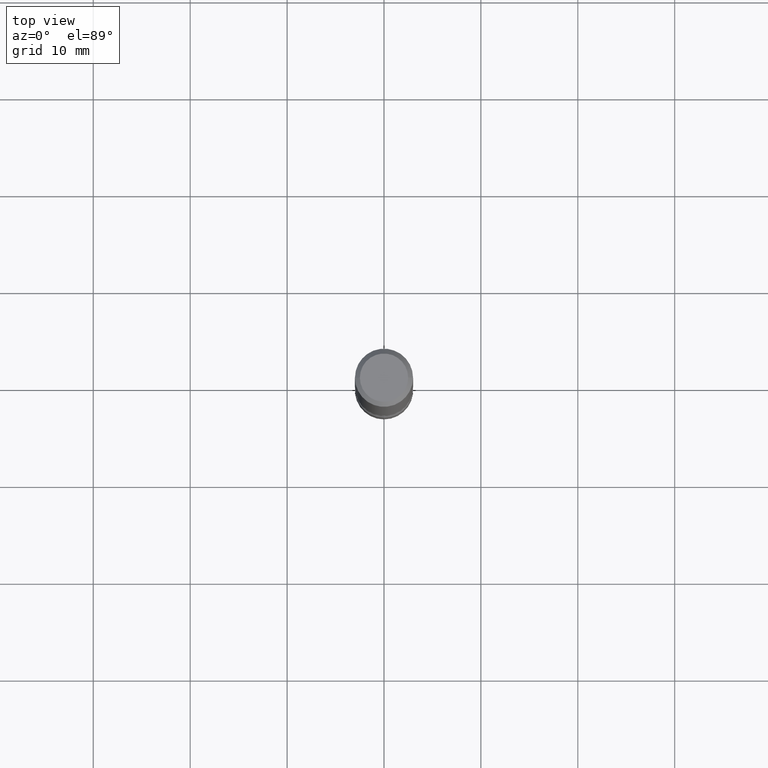
[diagram: clean part render]
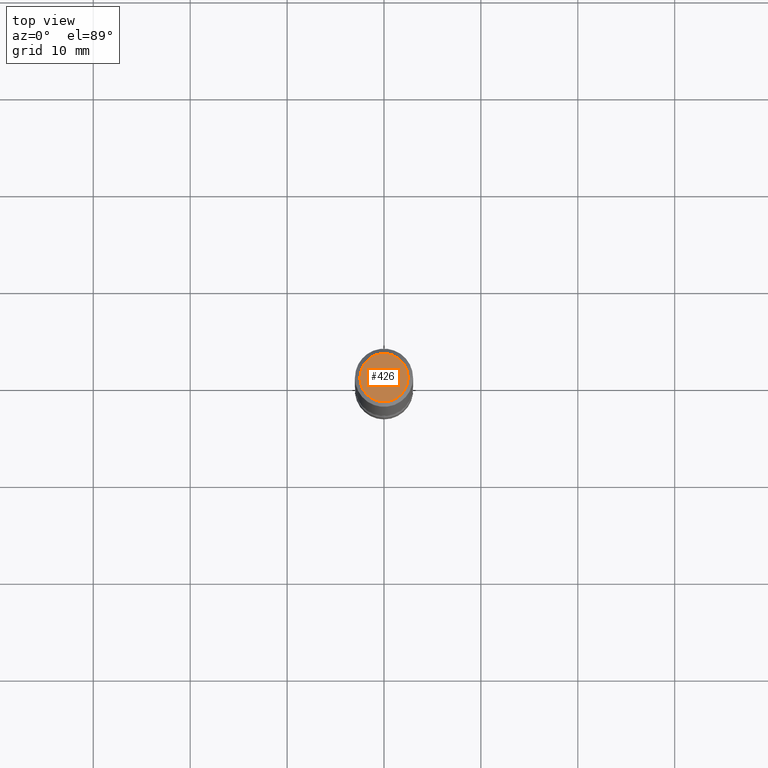
[diagram: same view with one face highlighted and labeled with its STEP entity id]
A machine part, top view. The second image highlights one B-rep face of the part: STEP entity #426.
In plain terms, the highlighted planar face has unit normal (0, -0, -1).
Its self-contained STEP definition (entity closure, byte-faithful):
#31 = AXIS2_PLACEMENT_3D ( 'NONE', #238, #180, #243 ) ;
#55 = FACE_OUTER_BOUND ( 'NONE', #71, .T. ) ;
#59 = ORIENTED_EDGE ( 'NONE', *, *, #449, .T. ) ;
#65 = AXIS2_PLACEMENT_3D ( 'NONE', #368, #451, #94 ) ;
#71 = EDGE_LOOP ( 'NONE', ( #59, #383 ) ) ;
#79 = CIRCLE ( 'NONE', #31, 0.09809999999999970133 ) ;
#94 = DIRECTION ( 'NONE',  ( -1.000000000000000000, 6.982962677686265922E-15, -4.876176775795935793E-29 ) ) ;
#104 = CIRCLE ( 'NONE', #130, 0.09809999999999970133 ) ;
#130 = AXIS2_PLACEMENT_3D ( 'NONE', #467, #194, #306 ) ;
#146 = CARTESIAN_POINT ( 'NONE',  ( 0.09809999999999970133, -7.765346469475317862E-16, -4.695363739109941188E-17 ) ) ;
#180 = DIRECTION ( 'NONE',  ( -2.445468806185136597E-29, 3.491481338843145583E-15, 1.000000000000000000 ) ) ;
#184 = VERTEX_POINT ( 'NONE', #264 ) ;
#194 = DIRECTION ( 'NONE',  ( -2.445468806185136597E-29, 3.491481338843145583E-15, 1.000000000000000000 ) ) ;
#211 = PLANE ( 'NONE',  #65 ) ;
#238 = CARTESIAN_POINT ( 'NONE',  ( 1.148236555768741665E-45, -1.639377487418492057E-31, -4.695363739110452099E-17 ) ) ;
#243 = DIRECTION ( 'NONE',  ( 1.000000000000000000, -6.982962677686266711E-15, 4.877161320636781926E-29 ) ) ;
#264 = CARTESIAN_POINT ( 'NONE',  ( -0.09809999999999970133, 7.199434520694515404E-16, -4.695363739110943904E-17 ) ) ;
#306 = DIRECTION ( 'NONE',  ( 1.000000000000000000, -6.982962677686266711E-15, 4.877161320636781926E-29 ) ) ;
#334 = EDGE_CURVE ( 'NONE', #363, #184, #79, .T. ) ;
#363 = VERTEX_POINT ( 'NONE', #146 ) ;
#368 = CARTESIAN_POINT ( 'NONE',  ( 6.850286386810205815E-16, 0.09809999999999970133, -3.659911380360637715E-16 ) ) ;
#383 = ORIENTED_EDGE ( 'NONE', *, *, #334, .T. ) ;
#426 = ADVANCED_FACE ( 'NONE', ( #55 ), #211, .F. ) ;
#449 = EDGE_CURVE ( 'NONE', #184, #363, #104, .T. ) ;
#451 = DIRECTION ( 'NONE',  ( 2.438088387897960049E-29, -3.491481338843145188E-15, -1.000000000000000000 ) ) ;
#467 = CARTESIAN_POINT ( 'NONE',  ( 1.148236555768741665E-45, -1.639377487418492057E-31, -4.695363739110452099E-17 ) ) ;